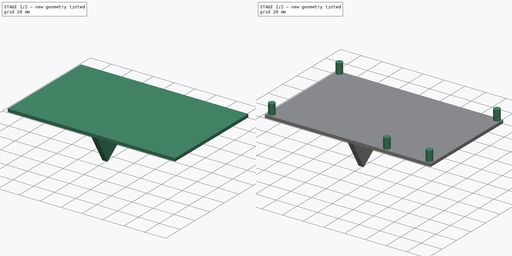
[diagram: build sequence overview — one tinted view per stage of 2, left to right]
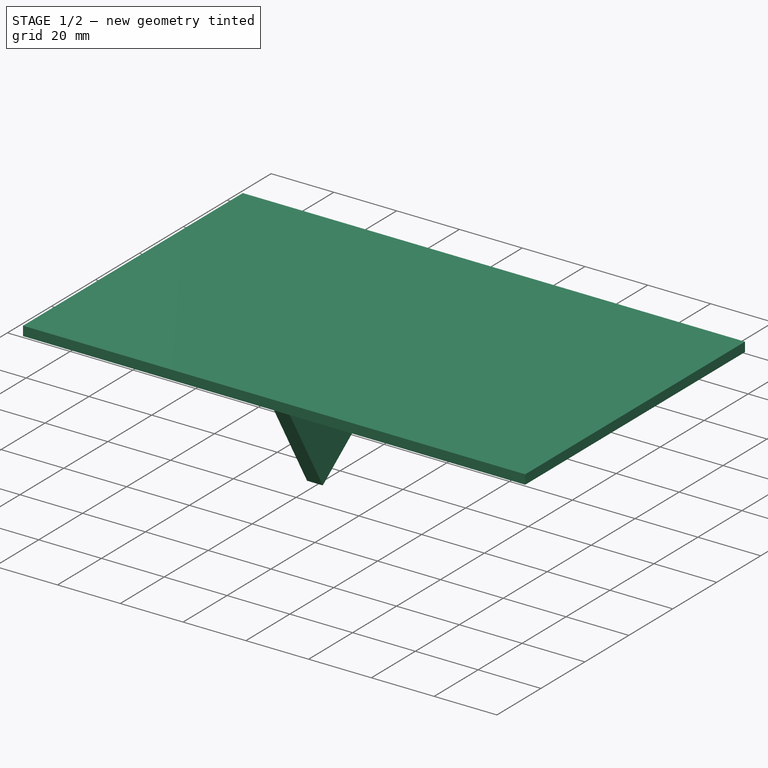
[diagram: stage 1 of 2 — iso view after this stage's code; geometry added in this stage tinted green]
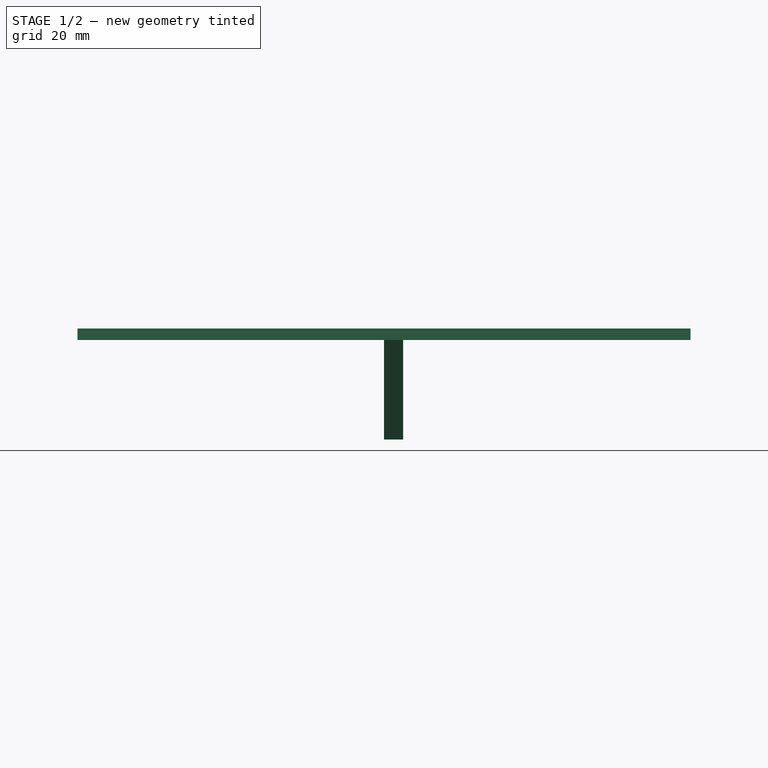
[diagram: stage 1 of 2 — front view after this stage's code; geometry added in this stage tinted green]
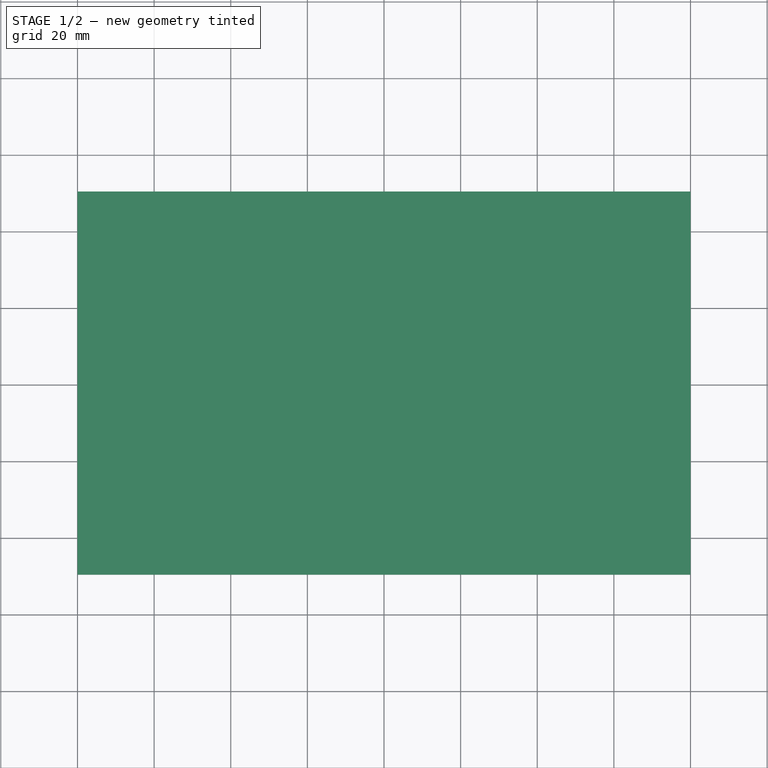
[diagram: stage 1 of 2 — top view after this stage's code; geometry added in this stage tinted green]
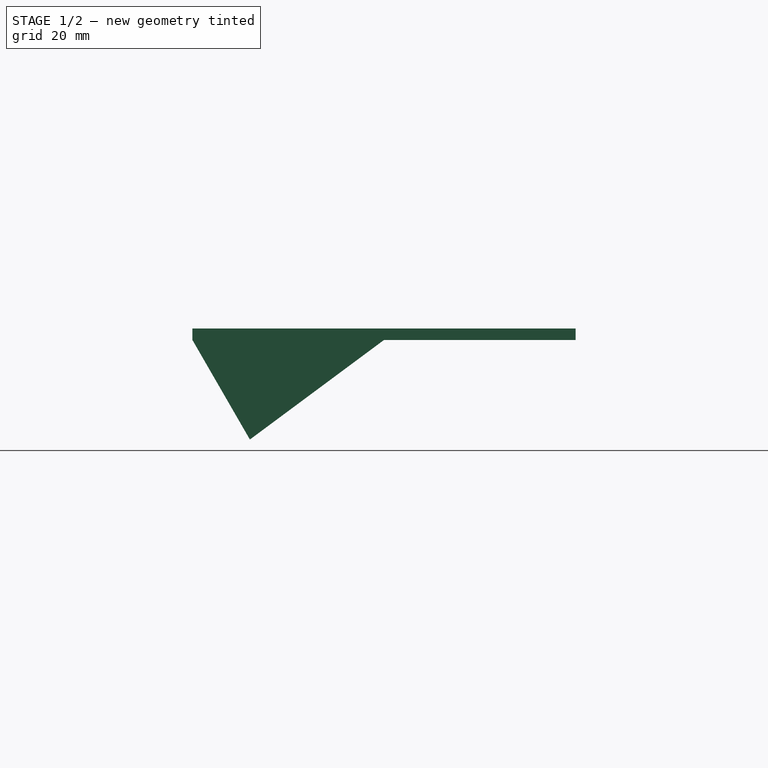
[diagram: stage 1 of 2 — right view after this stage's code; geometry added in this stage tinted green]
FCSTD DOCUMENT  (FreeCAD 0.19R24276 (Git))
Label: PLC14500-Nano-Support
License: All rights reserved
LicenseURL: http://en.wikipedia.org/wiki/All_rights_reserved
objects: Sketcher::SketchObject×3, PartDesign::Pad×3, PartDesign::Body×2
note: 11 computed .brp shape members not serialized (recipe doc carries the construction recipe); baked Part::Feature solids carry a one-line shape summary decoded from their .brp

FEATURE [Sketcher::SketchObject] Sketch
  FullyConstrained = true
  MapMode = 5
  Support = -> [XY_Plane]
  sketch-geometry (4):
    g0: LineSegment StartX=-80 StartY=50 StartZ=0 EndX=80 EndY=50 EndZ=0
    g1: LineSegment StartX=80 StartY=50 StartZ=0 EndX=80 EndY=-50 EndZ=0
    g2: LineSegment StartX=80 StartY=-50 StartZ=0 EndX=-80 EndY=-50 EndZ=0
    g3: LineSegment StartX=-80 StartY=-50 StartZ=0 EndX=-80 EndY=50 EndZ=0
  constraints (10):
    c: Coincident(g0,g1)
    c: Coincident(g1,g2)
    c: Coincident(g2,g3)
    c: Coincident(g3,g0)
    c: Horizontal(g2)
    c: Vertical(g3)
    c: DistanceX(g0,g0) = 160
    c: DistanceY(g1,g1) = 100
    c: Symmetric(g0,g0,g-2)
    c: Symmetric(g0,g1,g-1)
FEATURE [PartDesign::Pad] Pad  label="Plate"
  Direction = (1,1,1)
  Length = 3
  Length2 = 100
  Profile = -> Sketch
  Type = 0
FEATURE [PartDesign::Body] Body  label="MainPlate"
  Group = -> [Sketch,Pad,Sketch001,Pad001]
  Origin = -> Origin
  Tip = -> Pad001
FEATURE [Sketcher::SketchObject] Sketch002
  FullyConstrained = false
  MapMode = 5
  Placement = pos=(0,0,0) rot=(0.57735,0.57735,0.57735;2.0944rad)
  Support = -> [YZ_Plane001]
  sketch-geometry (4):
    g0: LineSegment StartX=-50 StartY=0 StartZ=0 EndX=0 EndY=0 EndZ=0
    g1: LineSegment StartX=0 StartY=0 StartZ=0 EndX=-35 EndY=-25.9808 EndZ=0
    g2: LineSegment StartX=-35 StartY=-25.9808 StartZ=0 EndX=-50 EndY=0 EndZ=0
    g3: LineSegment StartX=-50 StartY=0 StartZ=0 EndX=-50 EndY=-19.7887 EndZ=0
  constraints (10):
    c: Horizontal(g0)
    c: Coincident(g1,g0)
    c: Coincident(g2,g1)
    c: Coincident(g0,g-1)
    c: DistanceX(g0,g0) = 50
    c: Coincident(g3,g0)
    c: Vertical(g3)
    c: Angle(g3,g2) = 0.523599
    c: Coincident(g2,g0)
    c: Distance(g2) = 30
FEATURE [PartDesign::Pad] Pad002  label="Support"
  Direction = (1,1,1)
  Length = 5
  Length2 = 100
  Placement = pos=(0,0,0) rot=(0.57735,0.57735,0.57735;2.0944rad)
  Profile = -> Sketch002
  Type = 0
FEATURE [PartDesign::Body] Body001  label="MainPlateSupports"
  Group = -> [Sketch002,Pad002]
  Origin = -> Origin001
  Tip = -> Pad002
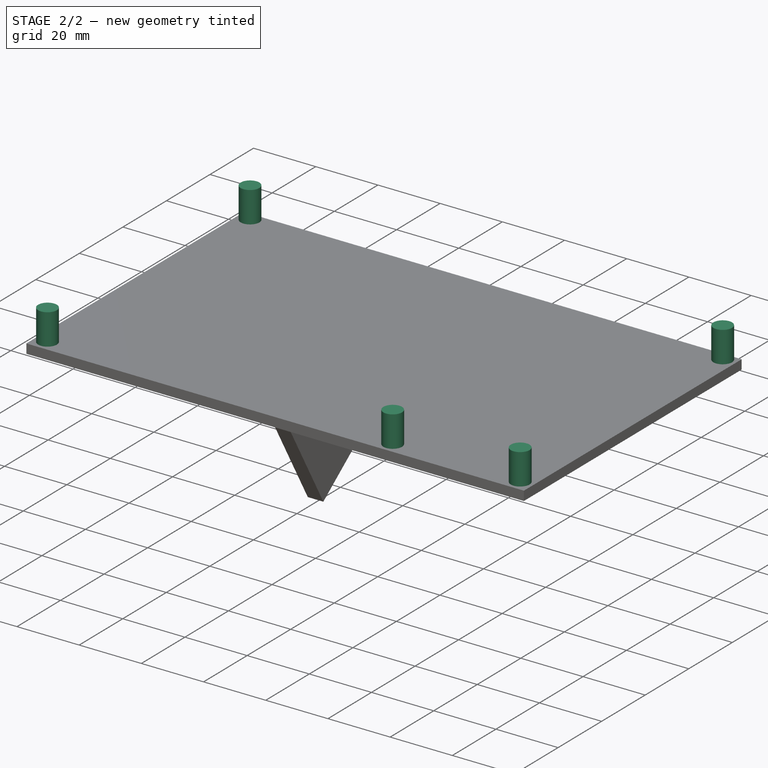
[diagram: stage 2 of 2 — iso view after this stage's code; geometry added in this stage tinted green]
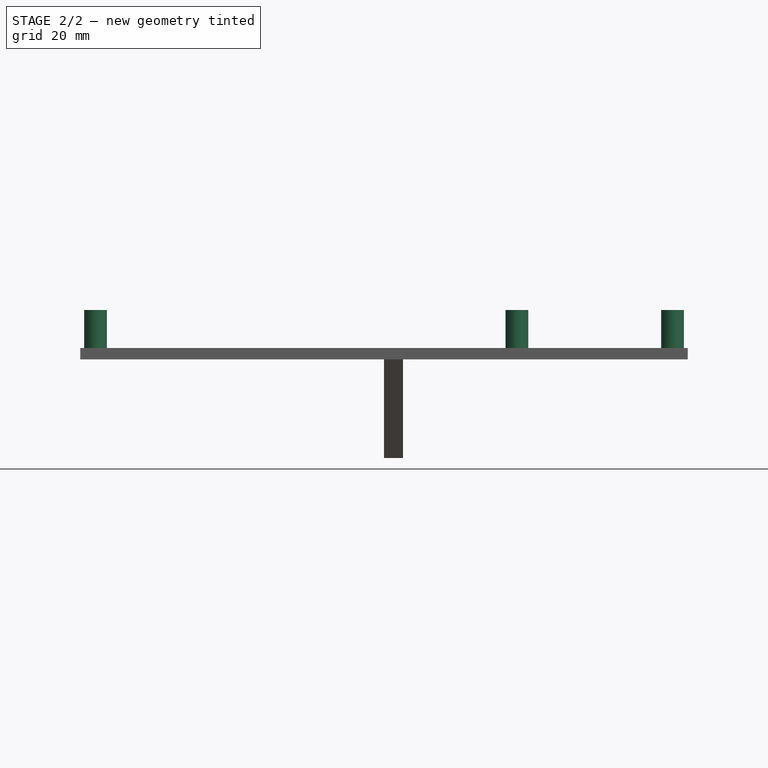
[diagram: stage 2 of 2 — front view after this stage's code; geometry added in this stage tinted green]
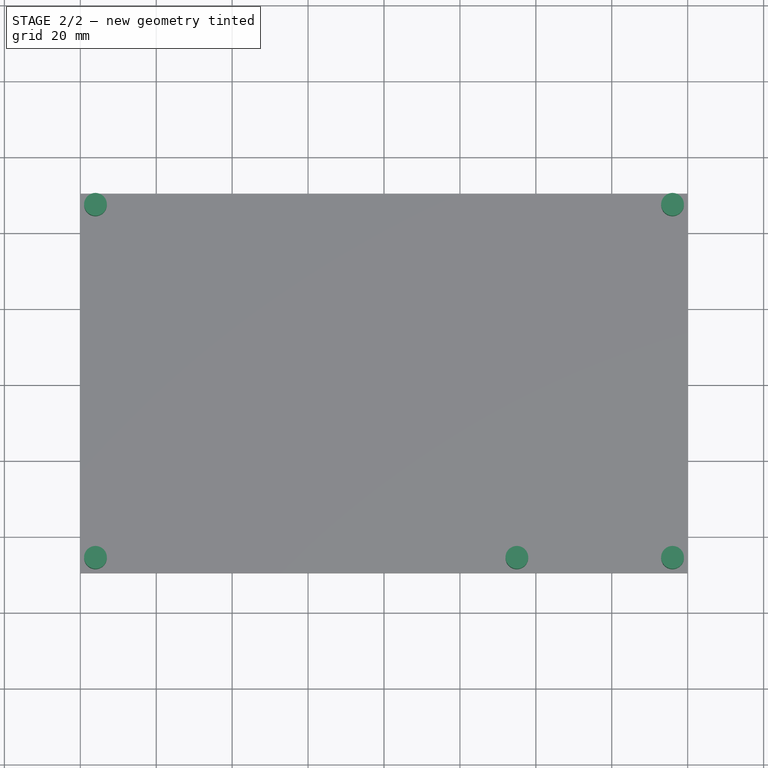
[diagram: stage 2 of 2 — top view after this stage's code; geometry added in this stage tinted green]
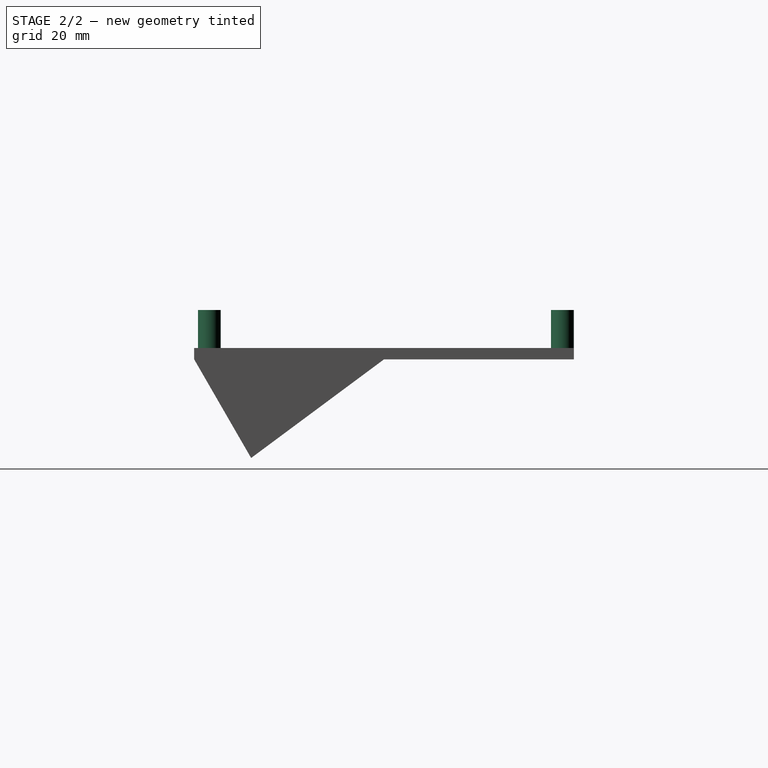
[diagram: stage 2 of 2 — right view after this stage's code; geometry added in this stage tinted green]
FEATURE [Sketcher::SketchObject] Sketch001
  ExternalGeometry = -> [Pad]
  FullyConstrained = true
  MapMode = 5
  Placement = pos=(0,0,3) rot=(0,0,1;0rad)
  Support = -> [Pad]
  sketch-geometry (5):
    g0: Circle CenterX=-76 CenterY=47 CenterZ=0 NormalX=0 NormalY=0 NormalZ=1 AngleXU=0 Radius=3
    g1: Circle CenterX=76 CenterY=47 CenterZ=0 NormalX=0 NormalY=0 NormalZ=1 AngleXU=0 Radius=3
    g2: Circle CenterX=76 CenterY=-46 CenterZ=0 NormalX=0 NormalY=0 NormalZ=1 AngleXU=0 Radius=3
    g3: Circle CenterX=-76 CenterY=-46 CenterZ=0 NormalX=0 NormalY=0 NormalZ=1 AngleXU=0 Radius=3
    g4: Circle CenterX=35 CenterY=-46 CenterZ=0 NormalX=0 NormalY=0 NormalZ=1 AngleXU=0 Radius=3
  constraints (15):
    c: DistanceX(g-6,g0) = 4
    c: DistanceY(g0,g-6) = 3
    c: Radius(g0) = 3
    c: DistanceX(g1,g-4) = 4
    c: DistanceY(g1,g-4) = 3
    c: Radius(g1) = 3
    c: DistanceX(g2,g1) = 0
    c: DistanceX(g0,g3) = 0
    c: DistanceY(g-6,g3) = 4
    c: DistanceY(g-6,g4) = 4
    c: DistanceY(g-5,g2) = 4
    c: Radius(g3) = 3
    c: Radius(g4) = 3
    c: Radius(g2) = 3
    c: DistanceX(g4,g2) = 41
FEATURE [PartDesign::Pad] Pad001  label="BoardSupports"
  BaseFeature = -> Pad
  Direction = (1,1,1)
  Length = 10
  Length2 = 100
  Profile = -> Sketch001
  Type = 0
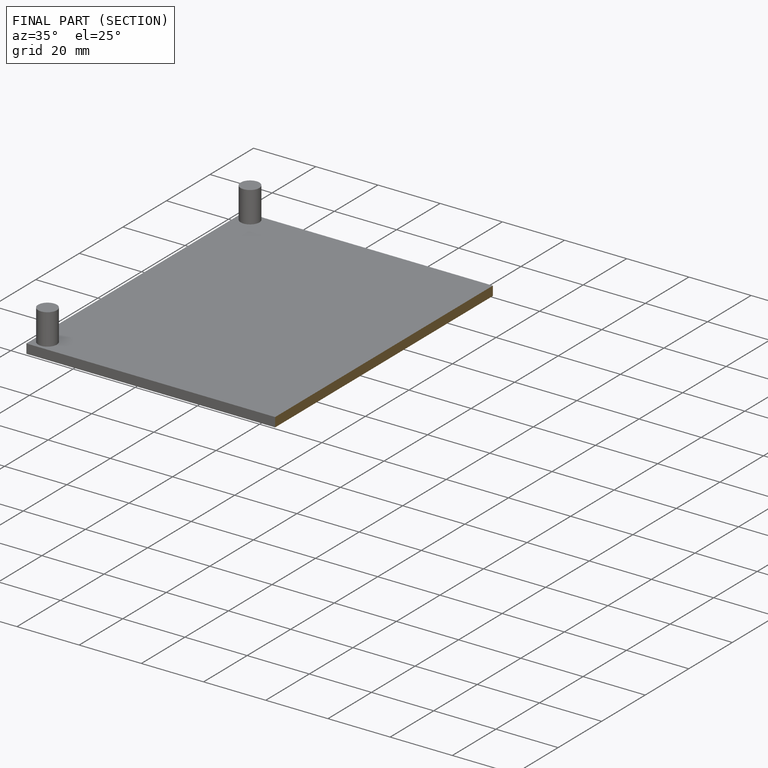
[diagram: finished part — half-section view (interior)]
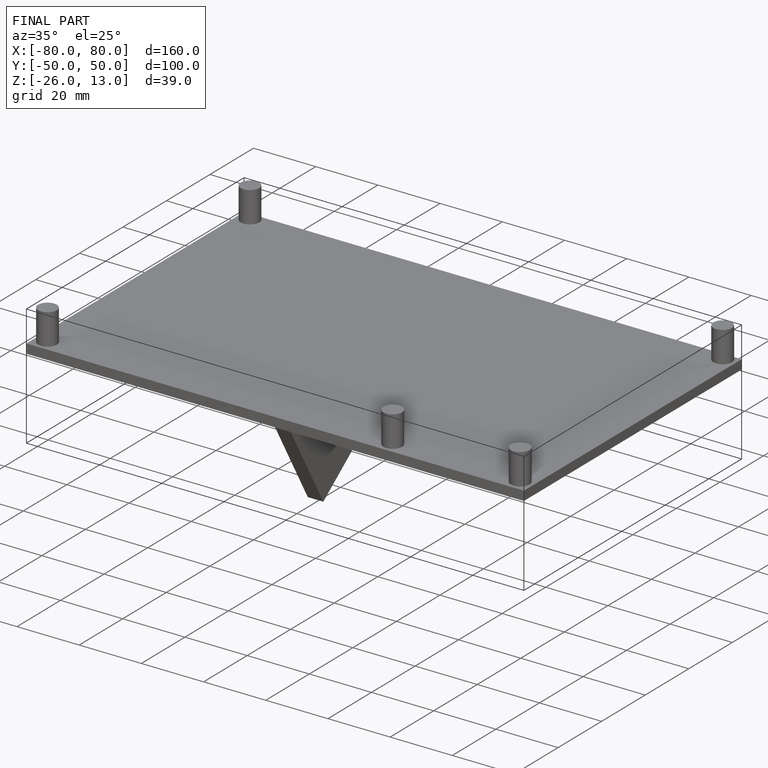
[diagram: finished part — iso view with bounding-box wireframe]
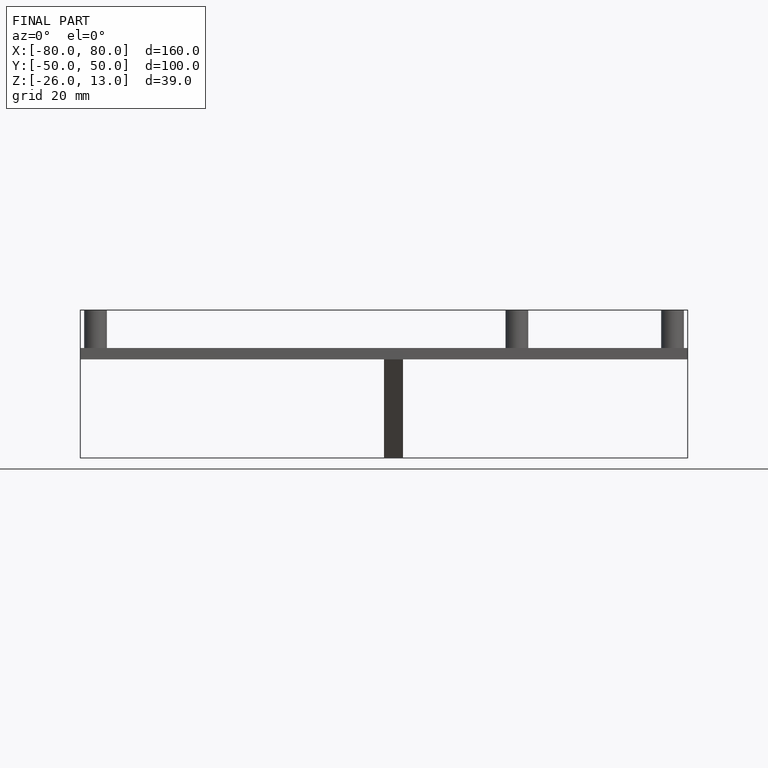
[diagram: finished part — front view with bounding-box wireframe]
